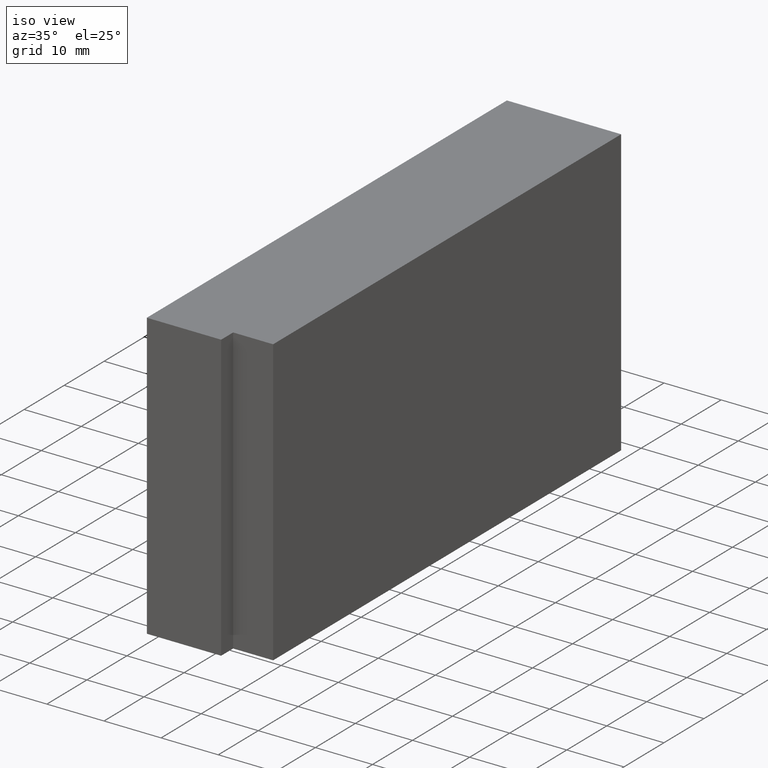
[diagram: clean part render]
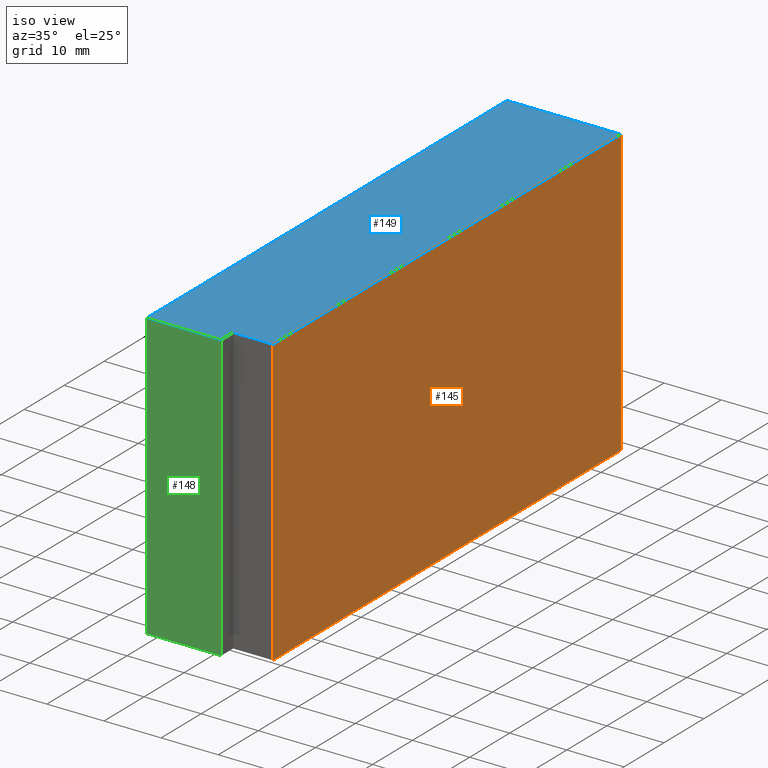
[diagram: same view with three faces highlighted in distinct colors, each labeled with its STEP entity id]
A machine part, iso view with three faces highlighted in distinct colors.
Their STEP definitions:

[orange] entity #145 — the highlighted planar face has unit normal (1, 0, 0).
#19=FACE_OUTER_BOUND('',#27,.T.);
#27=EDGE_LOOP('',(#112,#113,#114,#115));
#36=LINE('',#226,#54);
#42=LINE('',#237,#60);
#43=LINE('',#240,#61);
#44=LINE('',#241,#62);
#54=VECTOR('',#186,10.);
#60=VECTOR('',#196,10.);
#61=VECTOR('',#199,10.);
#62=VECTOR('',#200,10.);
#72=VERTEX_POINT('',#223);
#73=VERTEX_POINT('',#225);
#76=VERTEX_POINT('',#235);
#77=VERTEX_POINT('',#239);
#84=EDGE_CURVE('',#73,#72,#36,.T.);
#90=EDGE_CURVE('',#72,#76,#42,.T.);
#91=EDGE_CURVE('',#76,#77,#43,.T.);
#92=EDGE_CURVE('',#73,#77,#44,.T.);
#112=ORIENTED_EDGE('',*,*,#91,.T.);
#113=ORIENTED_EDGE('',*,*,#92,.F.);
#114=ORIENTED_EDGE('',*,*,#84,.T.);
#115=ORIENTED_EDGE('',*,*,#90,.T.);
#137=PLANE('',#173);
#145=ADVANCED_FACE('',(#19),#137,.T.);
#173=AXIS2_PLACEMENT_3D('',#238,#197,#198);
#186=DIRECTION('',(-3.82835525732813E-16,1.,0.));
#196=DIRECTION('',(0.,0.,1.));
#197=DIRECTION('center_axis',(1.,3.82835525732813E-16,0.));
#198=DIRECTION('ref_axis',(0.,0.,-1.));
#199=DIRECTION('',(3.82835525732813E-16,-1.,0.));
#200=DIRECTION('',(0.,0.,1.));
#223=CARTESIAN_POINT('',(9.99999999999999,45.,-25.));
#225=CARTESIAN_POINT('',(10.,-42.,-25.));
#226=CARTESIAN_POINT('',(10.,-42.,-25.));
#235=CARTESIAN_POINT('',(9.99999999999999,45.,25.));
#237=CARTESIAN_POINT('',(9.99999999999999,45.,0.));
#238=CARTESIAN_POINT('Origin',(9.99999999999999,45.,0.));
#239=CARTESIAN_POINT('',(10.,-42.,25.));
#240=CARTESIAN_POINT('',(10.,-42.,25.));
#241=CARTESIAN_POINT('',(10.,-42.,0.));

[blue] entity #149 — the highlighted planar face has unit normal (0, 0, 1).
#23=FACE_OUTER_BOUND('',#31,.T.);
#31=EDGE_LOOP('',(#128,#129,#130,#131,#132,#133));
#38=LINE('',#231,#56);
#41=LINE('',#236,#59);
#43=LINE('',#240,#61);
#45=LINE('',#244,#63);
#47=LINE('',#248,#65);
#49=LINE('',#251,#67);
#56=VECTOR('',#190,10.);
#59=VECTOR('',#195,10.);
#61=VECTOR('',#199,10.);
#63=VECTOR('',#203,10.);
#65=VECTOR('',#207,10.);
#67=VECTOR('',#211,10.);
#74=VERTEX_POINT('',#229);
#75=VERTEX_POINT('',#230);
#76=VERTEX_POINT('',#235);
#77=VERTEX_POINT('',#239);
#78=VERTEX_POINT('',#243);
#79=VERTEX_POINT('',#247);
#86=EDGE_CURVE('',#74,#75,#38,.T.);
#89=EDGE_CURVE('',#75,#76,#41,.T.);
#91=EDGE_CURVE('',#76,#77,#43,.T.);
#93=EDGE_CURVE('',#77,#78,#45,.T.);
#95=EDGE_CURVE('',#78,#79,#47,.T.);
#97=EDGE_CURVE('',#79,#74,#49,.T.);
#128=ORIENTED_EDGE('',*,*,#86,.F.);
#129=ORIENTED_EDGE('',*,*,#97,.F.);
#130=ORIENTED_EDGE('',*,*,#95,.F.);
#131=ORIENTED_EDGE('',*,*,#93,.F.);
#132=ORIENTED_EDGE('',*,*,#91,.F.);
#133=ORIENTED_EDGE('',*,*,#89,.F.);
#141=PLANE('',#177);
#149=ADVANCED_FACE('',(#23),#141,.T.);
#177=AXIS2_PLACEMENT_3D('',#252,#212,#213);
#190=DIRECTION('',(0.,1.,0.));
#195=DIRECTION('',(1.,0.,0.));
#199=DIRECTION('',(3.82835525732813E-16,-1.,0.));
#203=DIRECTION('',(-1.,0.,0.));
#207=DIRECTION('',(-5.18104078158407E-15,-1.,0.));
#211=DIRECTION('',(-1.,0.,0.));
#212=DIRECTION('center_axis',(0.,0.,1.));
#213=DIRECTION('ref_axis',(1.,0.,0.));
#229=CARTESIAN_POINT('',(-10.,-45.,25.));
#230=CARTESIAN_POINT('',(-10.,45.,25.));
#231=CARTESIAN_POINT('',(-10.,45.,25.));
#235=CARTESIAN_POINT('',(9.99999999999999,45.,25.));
#236=CARTESIAN_POINT('',(9.99999999999999,45.,25.));
#239=CARTESIAN_POINT('',(10.,-42.,25.));
#240=CARTESIAN_POINT('',(10.,-42.,25.));
#243=CARTESIAN_POINT('',(3.00000000000004,-42.,25.));
#244=CARTESIAN_POINT('',(3.00000000000004,-42.,25.));
#247=CARTESIAN_POINT('',(3.00000000000002,-45.,25.));
#248=CARTESIAN_POINT('',(3.00000000000002,-45.,25.));
#251=CARTESIAN_POINT('',(-10.,-45.,25.));
#252=CARTESIAN_POINT('Origin',(-0.0954545454545452,0.0954545454545409,25.));

[green] entity #148 — the highlighted planar face has unit normal (0, -1, 0).
#22=FACE_OUTER_BOUND('',#30,.T.);
#30=EDGE_LOOP('',(#124,#125,#126,#127));
#33=LINE('',#220,#51);
#40=LINE('',#233,#58);
#48=LINE('',#249,#66);
#49=LINE('',#251,#67);
#51=VECTOR('',#183,10.);
#58=VECTOR('',#192,10.);
#66=VECTOR('',#208,10.);
#67=VECTOR('',#211,10.);
#68=VERTEX_POINT('',#216);
#70=VERTEX_POINT('',#219);
#74=VERTEX_POINT('',#229);
#79=VERTEX_POINT('',#247);
#81=EDGE_CURVE('',#70,#68,#33,.T.);
#88=EDGE_CURVE('',#74,#70,#40,.T.);
#96=EDGE_CURVE('',#68,#79,#48,.T.);
#97=EDGE_CURVE('',#79,#74,#49,.T.);
#124=ORIENTED_EDGE('',*,*,#97,.T.);
#125=ORIENTED_EDGE('',*,*,#88,.T.);
#126=ORIENTED_EDGE('',*,*,#81,.T.);
#127=ORIENTED_EDGE('',*,*,#96,.T.);
#140=PLANE('',#176);
#148=ADVANCED_FACE('',(#22),#140,.T.);
#176=AXIS2_PLACEMENT_3D('',#250,#209,#210);
#183=DIRECTION('',(1.,0.,0.));
#192=DIRECTION('',(0.,0.,-1.));
#208=DIRECTION('',(0.,0.,1.));
#209=DIRECTION('center_axis',(0.,-1.,0.));
#210=DIRECTION('ref_axis',(0.,0.,-1.));
#211=DIRECTION('',(-1.,0.,0.));
#216=CARTESIAN_POINT('',(3.00000000000002,-45.,-25.));
#219=CARTESIAN_POINT('',(-10.,-45.,-25.));
#220=CARTESIAN_POINT('',(-10.,-45.,-25.));
#229=CARTESIAN_POINT('',(-10.,-45.,25.));
#233=CARTESIAN_POINT('',(-10.,-45.,0.));
#247=CARTESIAN_POINT('',(3.00000000000002,-45.,25.));
#249=CARTESIAN_POINT('',(3.00000000000002,-45.,0.));
#250=CARTESIAN_POINT('Origin',(3.00000000000002,-45.,0.));
#251=CARTESIAN_POINT('',(-10.,-45.,25.));